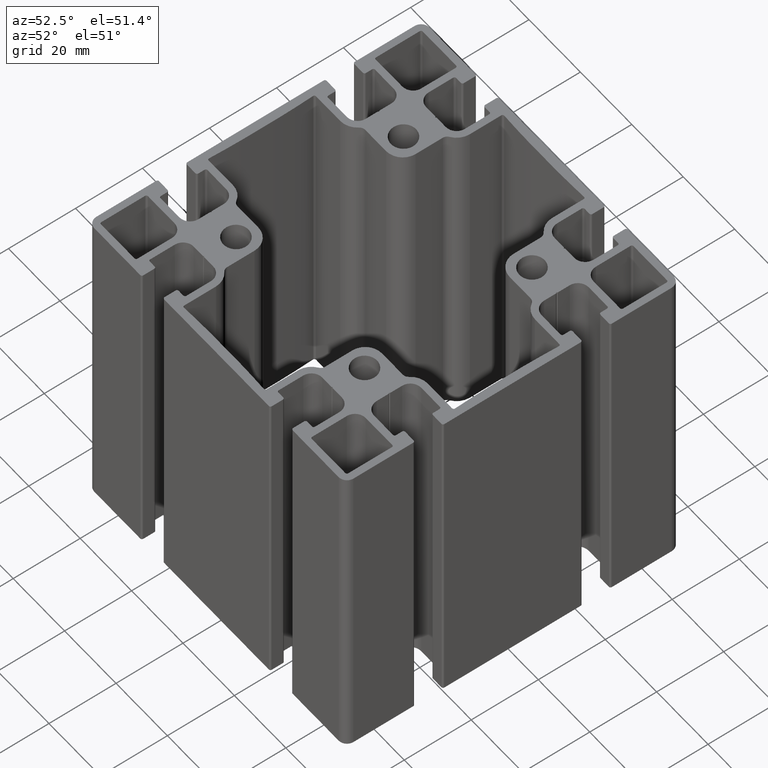
[diagram: clean part render]
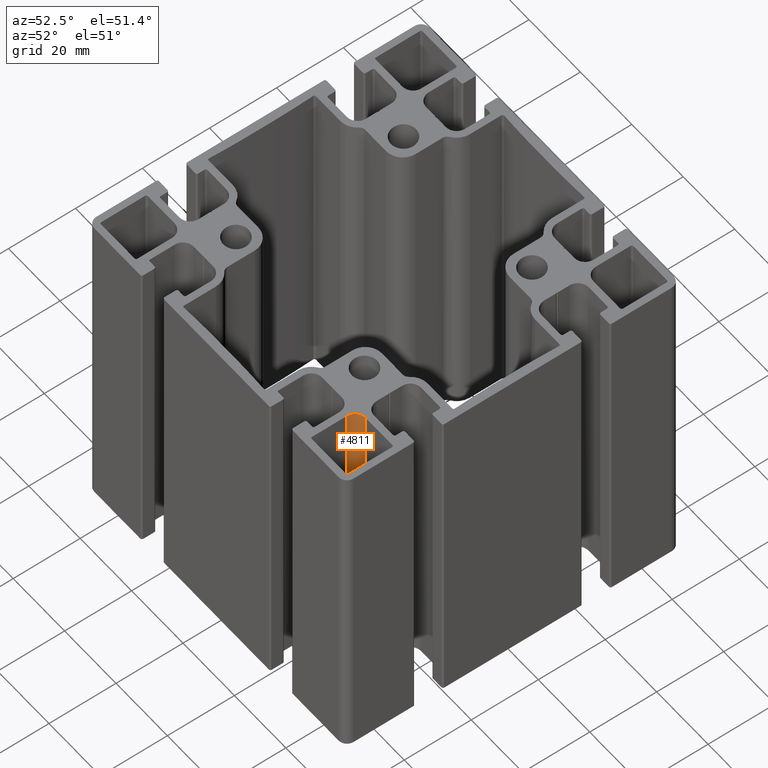
[diagram: same view with one face highlighted and labeled with its STEP entity id]
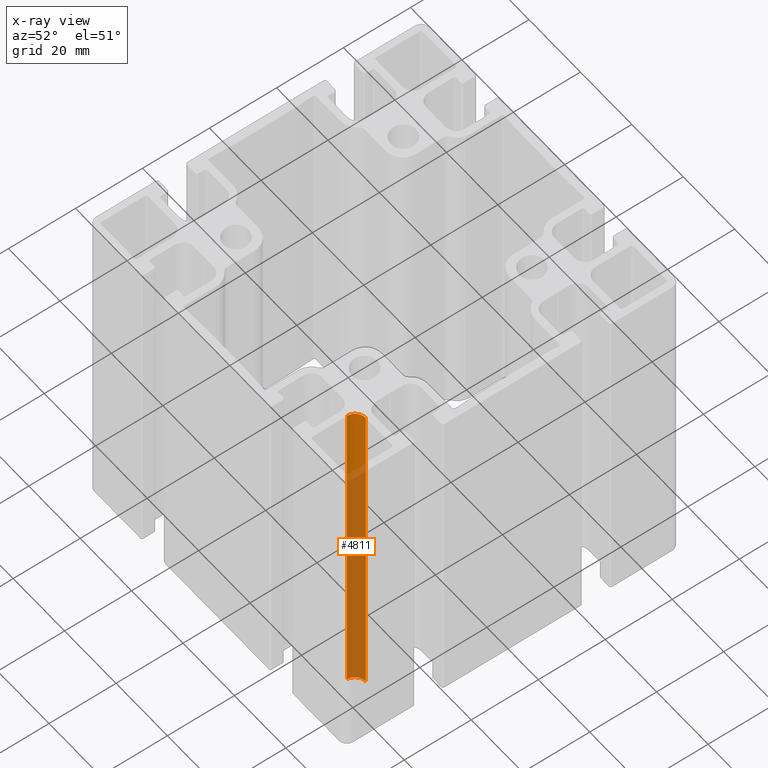
[diagram: x-ray of the same camera — body ghosted, the highlighted face saturated]
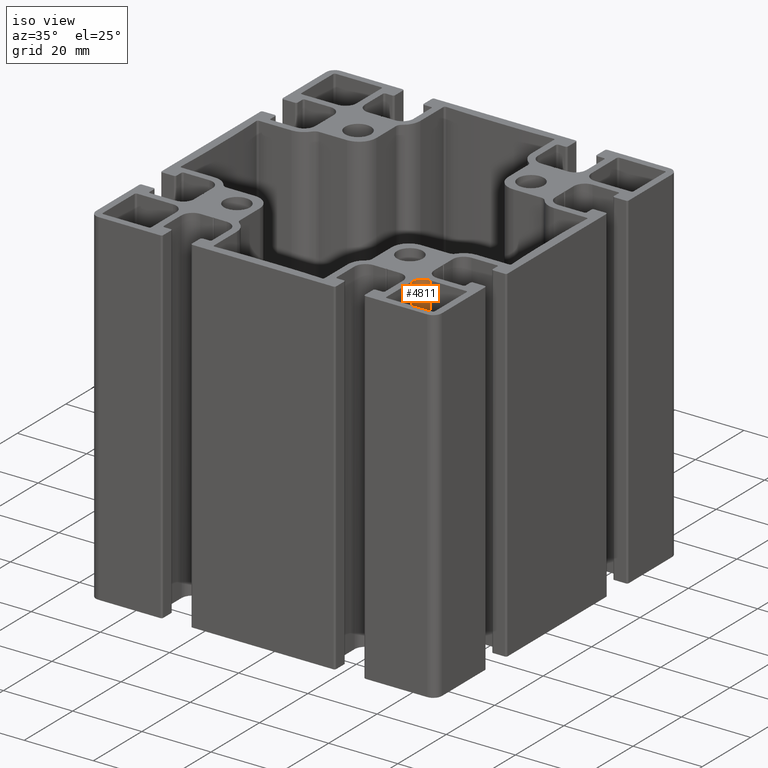
[diagram: same view with one face highlighted and labeled with its STEP entity id]
A machine part, auxiliary view. The second image highlights one B-rep face of the part: STEP entity #4811.
The next image is the same camera in x-ray: the body ghosted, the highlighted face saturated — about 80% of this face is hidden behind the body in this view.
A second angle (iso view) of the same face is appended — the face is thin or edge-on in the first view.
In plain terms, the highlighted cylindrical surface (edge-blend (fillet) strip) has radius 3.2 mm, axis along (0, 0, 1).
Its self-contained STEP definition (entity closure, byte-faithful):
#111=CIRCLE('',#5138,3.20000000000002);
#112=CIRCLE('',#5139,3.20000000000002);
#322=CYLINDRICAL_SURFACE('',#5137,3.20000000000002);
#463=FACE_OUTER_BOUND('',#713,.T.);
#713=EDGE_LOOP('',(#3367,#3368,#3369,#3370));
#1018=LINE('',#7323,#1510);
#1020=LINE('',#7329,#1512);
#1510=VECTOR('',#5852,100.);
#1512=VECTOR('',#5858,100.);
#2023=VERTEX_POINT('',#7320);
#2024=VERTEX_POINT('',#7322);
#2025=VERTEX_POINT('',#7326);
#2026=VERTEX_POINT('',#7328);
#2572=EDGE_CURVE('',#2023,#2024,#1018,.T.);
#2574=EDGE_CURVE('',#2025,#2023,#111,.T.);
#2575=EDGE_CURVE('',#2025,#2026,#1020,.T.);
#2576=EDGE_CURVE('',#2024,#2026,#112,.T.);
#3367=ORIENTED_EDGE('',*,*,#2574,.F.);
#3368=ORIENTED_EDGE('',*,*,#2575,.T.);
#3369=ORIENTED_EDGE('',*,*,#2576,.F.);
#3370=ORIENTED_EDGE('',*,*,#2572,.F.);
#4811=ADVANCED_FACE('',(#463),#322,.F.);
#5137=AXIS2_PLACEMENT_3D('',#7325,#5854,#5855);
#5138=AXIS2_PLACEMENT_3D('',#7327,#5856,#5857);
#5139=AXIS2_PLACEMENT_3D('',#7330,#5859,#5860);
#5852=DIRECTION('',(0.,0.,1.));
#5854=DIRECTION('center_axis',(0.,0.,1.));
#5855=DIRECTION('ref_axis',(3.54716256367733E-12,-1.,0.));
#5856=DIRECTION('center_axis',(0.,0.,1.));
#5857=DIRECTION('ref_axis',(3.54716256367733E-12,-1.,0.));
#5858=DIRECTION('',(0.,0.,1.));
#5859=DIRECTION('center_axis',(0.,0.,-1.));
#5860=DIRECTION('ref_axis',(3.54716256367733E-12,-1.,0.));
#7320=CARTESIAN_POINT('',(33.999999999977,-37.1999999995913,0.));
#7322=CARTESIAN_POINT('',(33.999999999977,-37.1999999995913,100.));
#7323=CARTESIAN_POINT('',(33.999999999977,-37.1999999995913,0.));
#7325=CARTESIAN_POINT('Origin',(37.199999999977,-37.1999999995913,0.));
#7326=CARTESIAN_POINT('',(37.1999999999657,-33.9999999995913,0.));
#7327=CARTESIAN_POINT('Origin',(37.199999999977,-37.1999999995913,0.));
#7328=CARTESIAN_POINT('',(37.1999999999657,-33.9999999995913,100.));
#7329=CARTESIAN_POINT('',(37.1999999999657,-33.9999999995913,0.));
#7330=CARTESIAN_POINT('Origin',(37.199999999977,-37.1999999995913,100.));